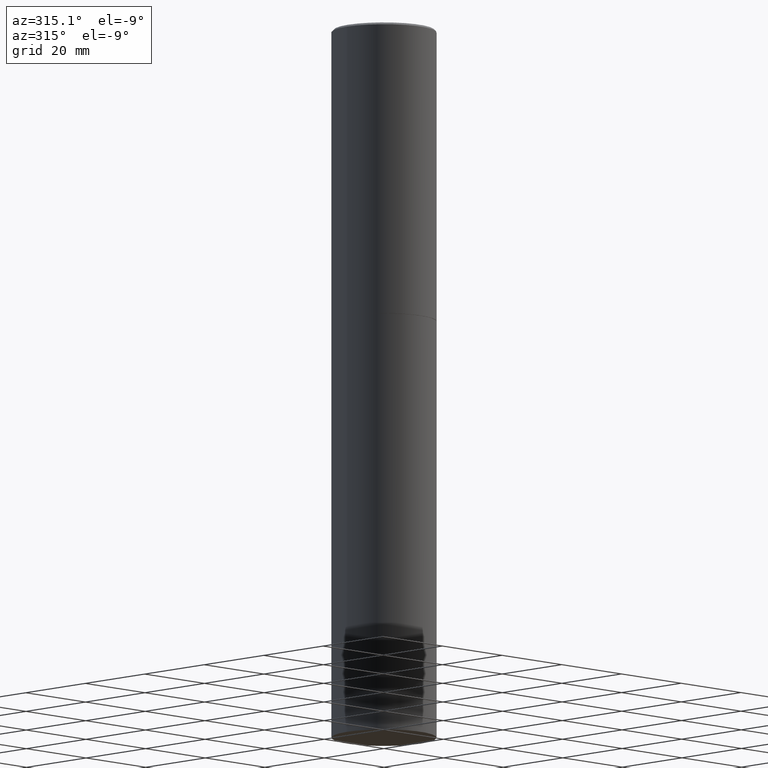
[diagram: clean part render]
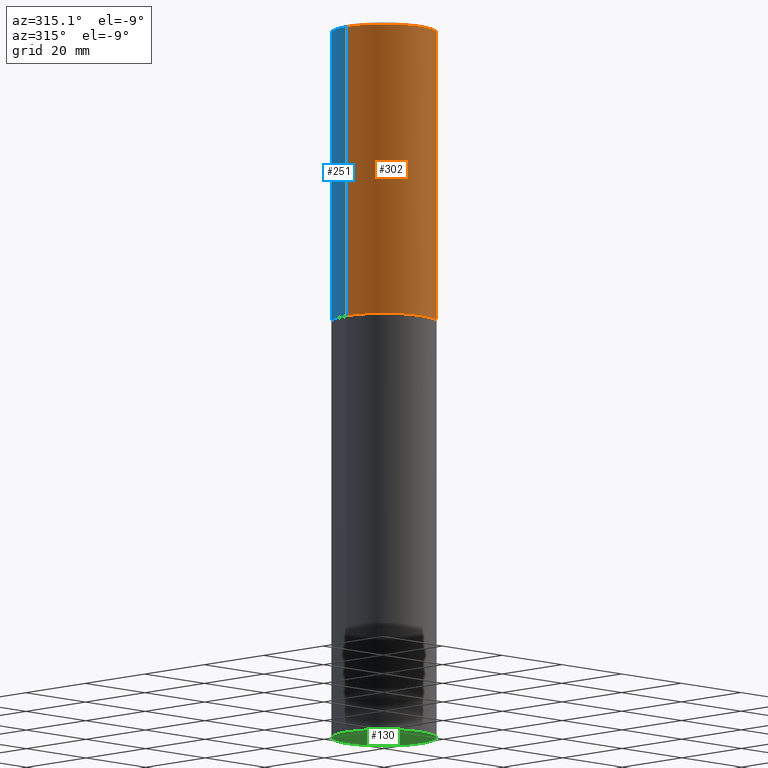
[diagram: same view with three faces highlighted in distinct colors, each labeled with its STEP entity id]
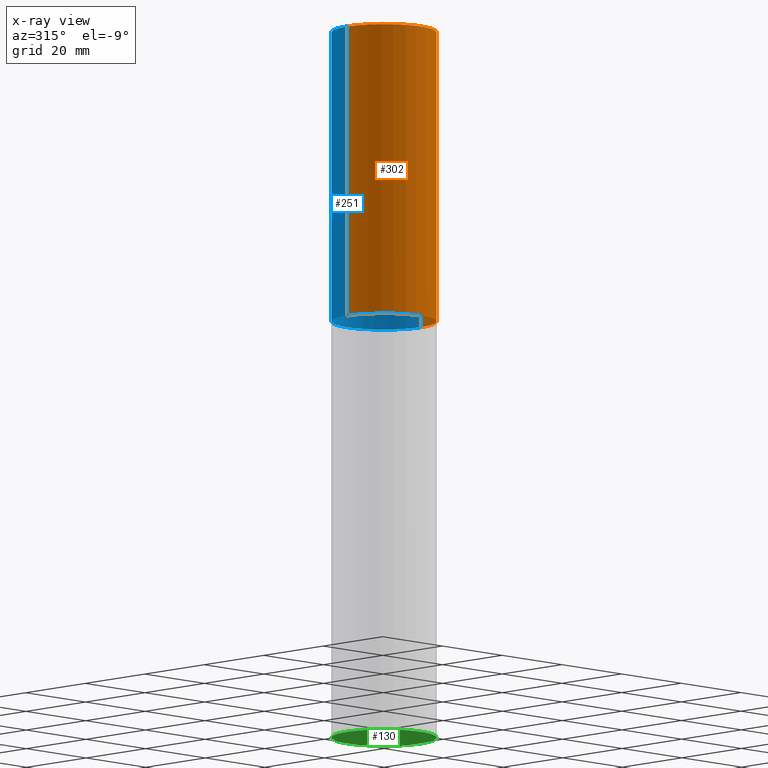
[diagram: x-ray of the same camera — body ghosted, the three highlighted faces saturated]
A machine part, auxiliary view with three faces highlighted in distinct colors.
The next image is the same camera in x-ray (body ghosted, the three faces saturated) — at least one of them is partly hidden behind the body in this view.
Their STEP definitions:

[orange] entity #302 — the highlighted cylindrical surface (partial cylindrical patch) has radius 12.5006 mm, axis along (-0, 0, 1).
#4 = CARTESIAN_POINT ( 'NONE',  ( -0.4921499999999997543, 3.496936074043331319E-15, -2.420853904668950668E-29 ) ) ;
#10 = ORIENTED_EDGE ( 'NONE', *, *, #201, .T. ) ;
#11 = CARTESIAN_POINT ( 'NONE',  ( 0.000000000000000000, 0.000000000000000000, 0.000000000000000000 ) ) ;
#23 = VECTOR ( 'NONE', #312, 39.37007874015748143 ) ;
#38 = DIRECTION ( 'NONE',  ( -2.445468806185136597E-29, 3.491481338843145583E-15, 1.000000000000000000 ) ) ;
#57 = LINE ( 'NONE', #194, #339 ) ;
#78 = CARTESIAN_POINT ( 'NONE',  ( 4.890937612370296805E-31, -6.982962677686323656E-17, -0.02000000000000009409 ) ) ;
#86 = CARTESIAN_POINT ( 'NONE',  ( -0.4921499999999995323, 3.366835455046429323E-15, -0.02000000000000009409 ) ) ;
#88 = EDGE_LOOP ( 'NONE', ( #232, #10, #119, #273 ) ) ;
#100 = EDGE_CURVE ( 'NONE', #216, #298, #365, .T. ) ;
#107 = CARTESIAN_POINT ( 'NONE',  ( 0.4921499999999995323, -3.446223716380119588E-15, -0.02000000000000009409 ) ) ;
#115 = VERTEX_POINT ( 'NONE', #163 ) ;
#117 = VERTEX_POINT ( 'NONE', #107 ) ;
#119 = ORIENTED_EDGE ( 'NONE', *, *, #217, .T. ) ;
#135 = DIRECTION ( 'NONE',  ( -2.445468806185136597E-29, 3.491481338843145583E-15, 1.000000000000000000 ) ) ;
#140 = CARTESIAN_POINT ( 'NONE',  ( -0.4921499999999999764, -1.347319709534586880E-15, -2.754900000000000126 ) ) ;
#141 = DIRECTION ( 'NONE',  ( 1.000000000000000000, -6.982962677686266711E-15, 0.000000000000000000 ) ) ;
#163 = CARTESIAN_POINT ( 'NONE',  ( 0.4921499999999999764, -1.305534702220227716E-14, -2.754900000000000126 ) ) ;
#164 = DIRECTION ( 'NONE',  ( -2.445468806185136597E-29, 3.491481338843145583E-15, 1.000000000000000000 ) ) ;
#173 = FACE_OUTER_BOUND ( 'NONE', #88, .T. ) ;
#184 = EDGE_CURVE ( 'NONE', #298, #117, #333, .T. ) ;
#194 = CARTESIAN_POINT ( 'NONE',  ( 0.4921499999999997543, -3.436665081823294199E-15, 2.399810400207968762E-29 ) ) ;
#201 = EDGE_CURVE ( 'NONE', #216, #115, #307, .T. ) ;
#203 = DIRECTION ( 'NONE',  ( 1.000000000000000000, -6.982962677686265922E-15, 4.876176775795936353E-29 ) ) ;
#216 = VERTEX_POINT ( 'NONE', #140 ) ;
#217 = EDGE_CURVE ( 'NONE', #115, #117, #57, .T. ) ;
#231 = CYLINDRICAL_SURFACE ( 'NONE', #301, 0.4921499999999997543 ) ;
#232 = ORIENTED_EDGE ( 'NONE', *, *, #100, .F. ) ;
#234 = AXIS2_PLACEMENT_3D ( 'NONE', #252, #164, #283 ) ;
#252 = CARTESIAN_POINT ( 'NONE',  ( 6.737022014159432629E-29, -9.618681940378981383E-15, -2.754900000000000126 ) ) ;
#258 = DIRECTION ( 'NONE',  ( -2.445468806185136877E-29, 3.491481338843145188E-15, 1.000000000000000000 ) ) ;
#273 = ORIENTED_EDGE ( 'NONE', *, *, #184, .F. ) ;
#283 = DIRECTION ( 'NONE',  ( 1.000000000000000000, -6.982962677686265922E-15, 0.000000000000000000 ) ) ;
#298 = VERTEX_POINT ( 'NONE', #86 ) ;
#301 = AXIS2_PLACEMENT_3D ( 'NONE', #11, #38, #203 ) ;
#302 = ADVANCED_FACE ( 'NONE', ( #173 ), #231, .T. ) ;
#307 = CIRCLE ( 'NONE', #234, 0.4921499999999999764 ) ;
#312 = DIRECTION ( 'NONE',  ( -2.445468806185136877E-29, 3.491481338843145188E-15, 1.000000000000000000 ) ) ;
#321 = AXIS2_PLACEMENT_3D ( 'NONE', #78, #135, #141 ) ;
#333 = CIRCLE ( 'NONE', #321, 0.4921499999999995323 ) ;
#339 = VECTOR ( 'NONE', #258, 39.37007874015748143 ) ;
#365 = LINE ( 'NONE', #4, #23 ) ;

[blue] entity #251 — the highlighted cylindrical surface (partial cylindrical patch) has radius 12.5006 mm, axis along (-0, 0, 1).
#3 = DIRECTION ( 'NONE',  ( 1.000000000000000000, -6.982962677686265922E-15, 4.876176775795936353E-29 ) ) ;
#4 = CARTESIAN_POINT ( 'NONE',  ( -0.4921499999999997543, 3.496936074043331319E-15, -2.420853904668950668E-29 ) ) ;
#21 = EDGE_CURVE ( 'NONE', #117, #298, #294, .T. ) ;
#23 = VECTOR ( 'NONE', #312, 39.37007874015748143 ) ;
#25 = DIRECTION ( 'NONE',  ( -2.445468806185136597E-29, 3.491481338843145583E-15, 1.000000000000000000 ) ) ;
#37 = EDGE_LOOP ( 'NONE', ( #64, #205, #176, #351 ) ) ;
#41 = AXIS2_PLACEMENT_3D ( 'NONE', #85, #56, #340 ) ;
#56 = DIRECTION ( 'NONE',  ( -2.445468806185136597E-29, 3.491481338843145583E-15, 1.000000000000000000 ) ) ;
#57 = LINE ( 'NONE', #194, #339 ) ;
#64 = ORIENTED_EDGE ( 'NONE', *, *, #80, .T. ) ;
#80 = EDGE_CURVE ( 'NONE', #115, #216, #360, .T. ) ;
#85 = CARTESIAN_POINT ( 'NONE',  ( 6.737022014159432629E-29, -9.618681940378981383E-15, -2.754900000000000126 ) ) ;
#86 = CARTESIAN_POINT ( 'NONE',  ( -0.4921499999999995323, 3.366835455046429323E-15, -0.02000000000000009409 ) ) ;
#100 = EDGE_CURVE ( 'NONE', #216, #298, #365, .T. ) ;
#107 = CARTESIAN_POINT ( 'NONE',  ( 0.4921499999999995323, -3.446223716380119588E-15, -0.02000000000000009409 ) ) ;
#115 = VERTEX_POINT ( 'NONE', #163 ) ;
#117 = VERTEX_POINT ( 'NONE', #107 ) ;
#127 = AXIS2_PLACEMENT_3D ( 'NONE', #214, #247, #325 ) ;
#140 = CARTESIAN_POINT ( 'NONE',  ( -0.4921499999999999764, -1.347319709534586880E-15, -2.754900000000000126 ) ) ;
#142 = AXIS2_PLACEMENT_3D ( 'NONE', #282, #25, #3 ) ;
#163 = CARTESIAN_POINT ( 'NONE',  ( 0.4921499999999999764, -1.305534702220227716E-14, -2.754900000000000126 ) ) ;
#167 = FACE_OUTER_BOUND ( 'NONE', #37, .T. ) ;
#169 = CYLINDRICAL_SURFACE ( 'NONE', #142, 0.4921499999999997543 ) ;
#176 = ORIENTED_EDGE ( 'NONE', *, *, #21, .F. ) ;
#194 = CARTESIAN_POINT ( 'NONE',  ( 0.4921499999999997543, -3.436665081823294199E-15, 2.399810400207968762E-29 ) ) ;
#205 = ORIENTED_EDGE ( 'NONE', *, *, #100, .T. ) ;
#214 = CARTESIAN_POINT ( 'NONE',  ( 4.890937612370296805E-31, -6.982962677686323656E-17, -0.02000000000000009409 ) ) ;
#216 = VERTEX_POINT ( 'NONE', #140 ) ;
#217 = EDGE_CURVE ( 'NONE', #115, #117, #57, .T. ) ;
#247 = DIRECTION ( 'NONE',  ( -2.445468806185136597E-29, 3.491481338843145583E-15, 1.000000000000000000 ) ) ;
#251 = ADVANCED_FACE ( 'NONE', ( #167 ), #169, .T. ) ;
#258 = DIRECTION ( 'NONE',  ( -2.445468806185136877E-29, 3.491481338843145188E-15, 1.000000000000000000 ) ) ;
#282 = CARTESIAN_POINT ( 'NONE',  ( 0.000000000000000000, 0.000000000000000000, 0.000000000000000000 ) ) ;
#294 = CIRCLE ( 'NONE', #127, 0.4921499999999995323 ) ;
#298 = VERTEX_POINT ( 'NONE', #86 ) ;
#312 = DIRECTION ( 'NONE',  ( -2.445468806185136877E-29, 3.491481338843145188E-15, 1.000000000000000000 ) ) ;
#325 = DIRECTION ( 'NONE',  ( 1.000000000000000000, -6.982962677686266711E-15, 0.000000000000000000 ) ) ;
#339 = VECTOR ( 'NONE', #258, 39.37007874015748143 ) ;
#340 = DIRECTION ( 'NONE',  ( 1.000000000000000000, -6.982962677686265922E-15, 0.000000000000000000 ) ) ;
#351 = ORIENTED_EDGE ( 'NONE', *, *, #217, .F. ) ;
#360 = CIRCLE ( 'NONE', #41, 0.4921499999999999764 ) ;
#365 = LINE ( 'NONE', #4, #23 ) ;

[green] entity #130 — the highlighted planar face has unit normal (0, -0, -1).
#27 = EDGE_CURVE ( 'NONE', #348, #292, #134, .T. ) ;
#40 = ORIENTED_EDGE ( 'NONE', *, *, #27, .F. ) ;
#55 = CIRCLE ( 'NONE', #354, 0.4921499999999999764 ) ;
#62 = ORIENTED_EDGE ( 'NONE', *, *, #341, .F. ) ;
#75 = FACE_OUTER_BOUND ( 'NONE', #320, .T. ) ;
#109 = DIRECTION ( 'NONE',  ( -1.000000000000000000, 6.982962677686265922E-15, -4.876176775795935793E-29 ) ) ;
#130 = ADVANCED_FACE ( 'NONE', ( #75 ), #277, .T. ) ;
#134 = CIRCLE ( 'NONE', #311, 0.4921499999999999764 ) ;
#147 = CARTESIAN_POINT ( 'NONE',  ( -0.4921499999999999764, -1.299821836318722399E-14, -6.692899999999999849 ) ) ;
#171 = CARTESIAN_POINT ( 'NONE',  ( 0.4921499999999999764, -2.680480053456658516E-14, -6.692899999999999849 ) ) ;
#186 = DIRECTION ( 'NONE',  ( 1.000000000000000000, -6.982962677686265922E-15, 0.000000000000000000 ) ) ;
#206 = DIRECTION ( 'NONE',  ( 1.000000000000000000, -6.982962677686265922E-15, 0.000000000000000000 ) ) ;
#233 = CARTESIAN_POINT ( 'NONE',  ( 1.636727817291649966E-28, -2.336813545274328780E-14, -6.692899999999999849 ) ) ;
#238 = DIRECTION ( 'NONE',  ( -2.445468806185136597E-29, 3.491481338843145583E-15, 1.000000000000000000 ) ) ;
#253 = AXIS2_PLACEMENT_3D ( 'NONE', #313, #332, #109 ) ;
#277 = PLANE ( 'NONE',  #253 ) ;
#292 = VERTEX_POINT ( 'NONE', #171 ) ;
#311 = AXIS2_PLACEMENT_3D ( 'NONE', #363, #362, #186 ) ;
#313 = CARTESIAN_POINT ( 'NONE',  ( 3.436665081823459465E-15, 0.4921499999999766062, -6.692900000000002514 ) ) ;
#320 = EDGE_LOOP ( 'NONE', ( #62, #40 ) ) ;
#332 = DIRECTION ( 'NONE',  ( 2.438088387897960049E-29, -3.491481338843145188E-15, -1.000000000000000000 ) ) ;
#341 = EDGE_CURVE ( 'NONE', #292, #348, #55, .T. ) ;
#348 = VERTEX_POINT ( 'NONE', #147 ) ;
#354 = AXIS2_PLACEMENT_3D ( 'NONE', #233, #238, #206 ) ;
#362 = DIRECTION ( 'NONE',  ( -2.445468806185136597E-29, 3.491481338843145583E-15, 1.000000000000000000 ) ) ;
#363 = CARTESIAN_POINT ( 'NONE',  ( 1.636727817291649966E-28, -2.336813545274328780E-14, -6.692899999999999849 ) ) ;